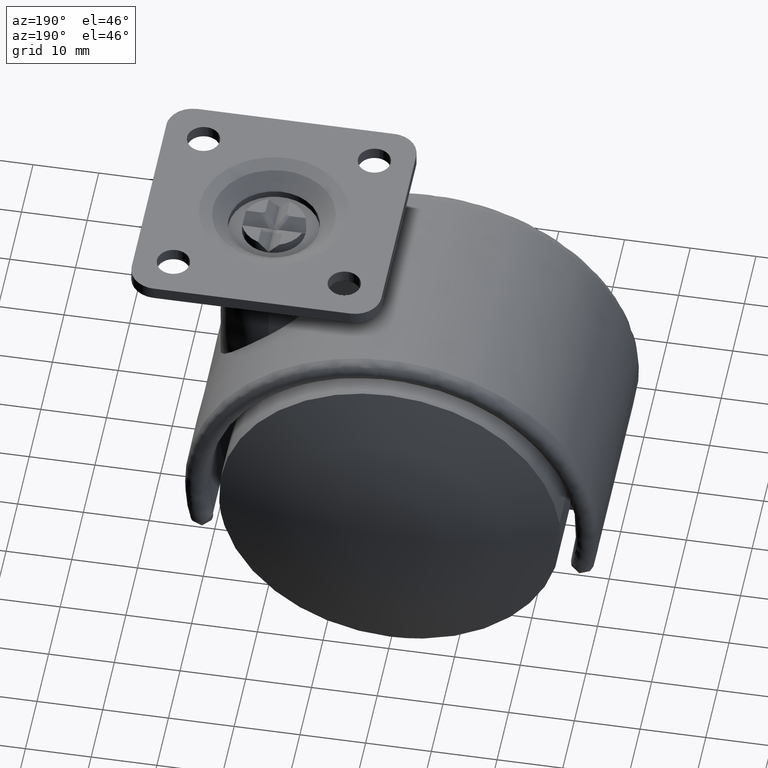
[diagram: clean part render]
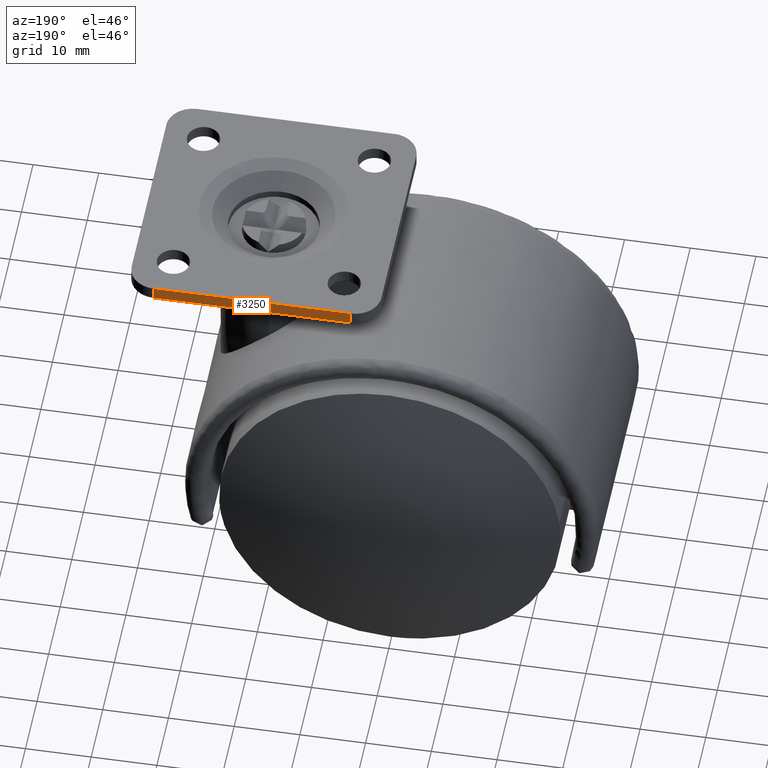
[diagram: same view with one face highlighted and labeled with its STEP entity id]
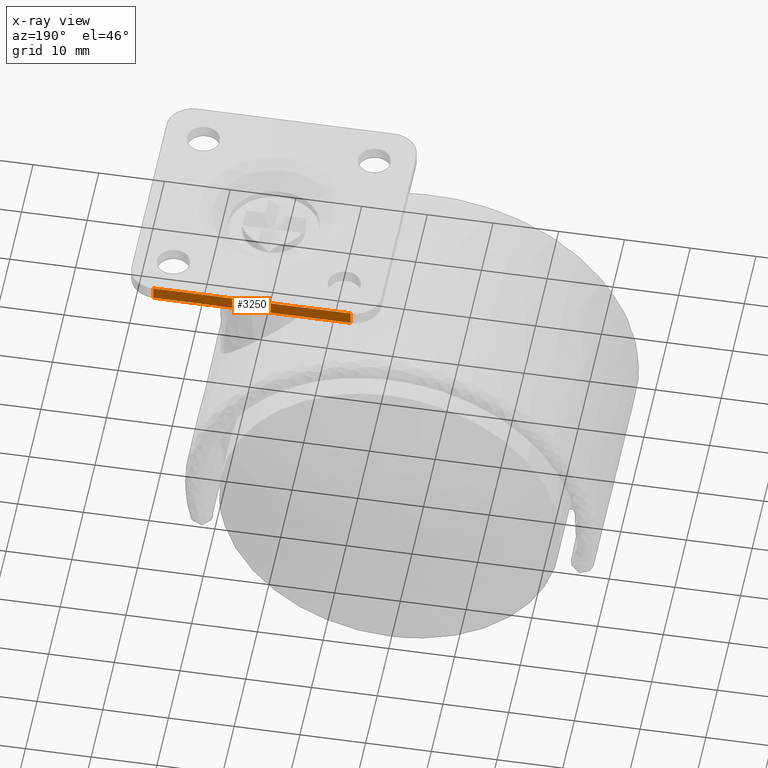
[diagram: x-ray of the same camera — body ghosted, the highlighted face saturated]
A machine part, auxiliary view. The second image highlights one B-rep face of the part: STEP entity #3250.
The next image is the same camera in x-ray: the body ghosted, the highlighted face saturated — about 0% of this face is hidden behind the body in this view.
In plain terms, the highlighted face is a freeform B-spline surface patch.
Its self-contained STEP definition (entity closure, byte-faithful):
#3184=CARTESIAN_POINT('',(37.0,19.0,40.500000000000000));
#3185=VERTEX_POINT('',#3184);
#3199=CARTESIAN_POINT('',(37.0,19.0,42.500000000000000));
#3200=VERTEX_POINT('',#3199);
#3201=CARTESIAN_POINT('',(37.0,19.0,40.500000000000000));
#3202=CARTESIAN_POINT('',(37.0,19.0,42.500000000000000));
#3203=QUASI_UNIFORM_CURVE('',1,(#3201,#3202),.UNSPECIFIED.,.F.,.U.);
#3204=EDGE_CURVE('',#3185,#3200,#3203,.T.);
#3223=CARTESIAN_POINT('',(5.501500058145822,19.0,42.599899996123618));
#3224=CARTESIAN_POINT('',(5.501500058145822,19.0,40.400099950232210));
#3225=CARTESIAN_POINT('',(38.498500746516903,19.0,42.599899996123618));
#3226=CARTESIAN_POINT('',(38.498500746516903,19.0,40.400099950232210));
#3227=B_SPLINE_SURFACE_WITH_KNOTS('',1,1,((#3223,#3225),(#3224,#3226)),.UNSPECIFIED.,.F.,.F.,.U.,(2,2),(2,2),(0.0,2.199800045891408),(0.0,32.997000688371067),.UNSPECIFIED.);
#3228=ORIENTED_EDGE('',*,*,#3204,.F.);
#3229=CARTESIAN_POINT('',(7.0,19.0,40.500000000000000));
#3230=VERTEX_POINT('',#3229);
#3231=CARTESIAN_POINT('',(37.0,19.0,40.500000000000000));
#3232=CARTESIAN_POINT('',(7.0,19.0,40.500000000000000));
#3233=QUASI_UNIFORM_CURVE('',1,(#3231,#3232),.UNSPECIFIED.,.F.,.U.);
#3234=EDGE_CURVE('',#3185,#3230,#3233,.T.);
#3235=ORIENTED_EDGE('',*,*,#3234,.T.);
#3236=CARTESIAN_POINT('',(7.0,19.0,42.500000000000000));
#3237=VERTEX_POINT('',#3236);
#3238=CARTESIAN_POINT('',(7.0,19.0,40.500000000000000));
#3239=CARTESIAN_POINT('',(7.0,19.0,42.500000000000000));
#3240=QUASI_UNIFORM_CURVE('',1,(#3238,#3239),.UNSPECIFIED.,.F.,.U.);
#3241=EDGE_CURVE('',#3230,#3237,#3240,.T.);
#3242=ORIENTED_EDGE('',*,*,#3241,.T.);
#3243=CARTESIAN_POINT('',(7.0,19.0,42.500000000000000));
#3244=CARTESIAN_POINT('',(37.0,19.0,42.500000000000000));
#3245=QUASI_UNIFORM_CURVE('',1,(#3243,#3244),.UNSPECIFIED.,.F.,.U.);
#3246=EDGE_CURVE('',#3237,#3200,#3245,.T.);
#3247=ORIENTED_EDGE('',*,*,#3246,.T.);
#3248=EDGE_LOOP('',(#3228,#3235,#3242,#3247));
#3249=FACE_OUTER_BOUND('',#3248,.T.);
#3250=ADVANCED_FACE('',(#3249),#3227,.F.);